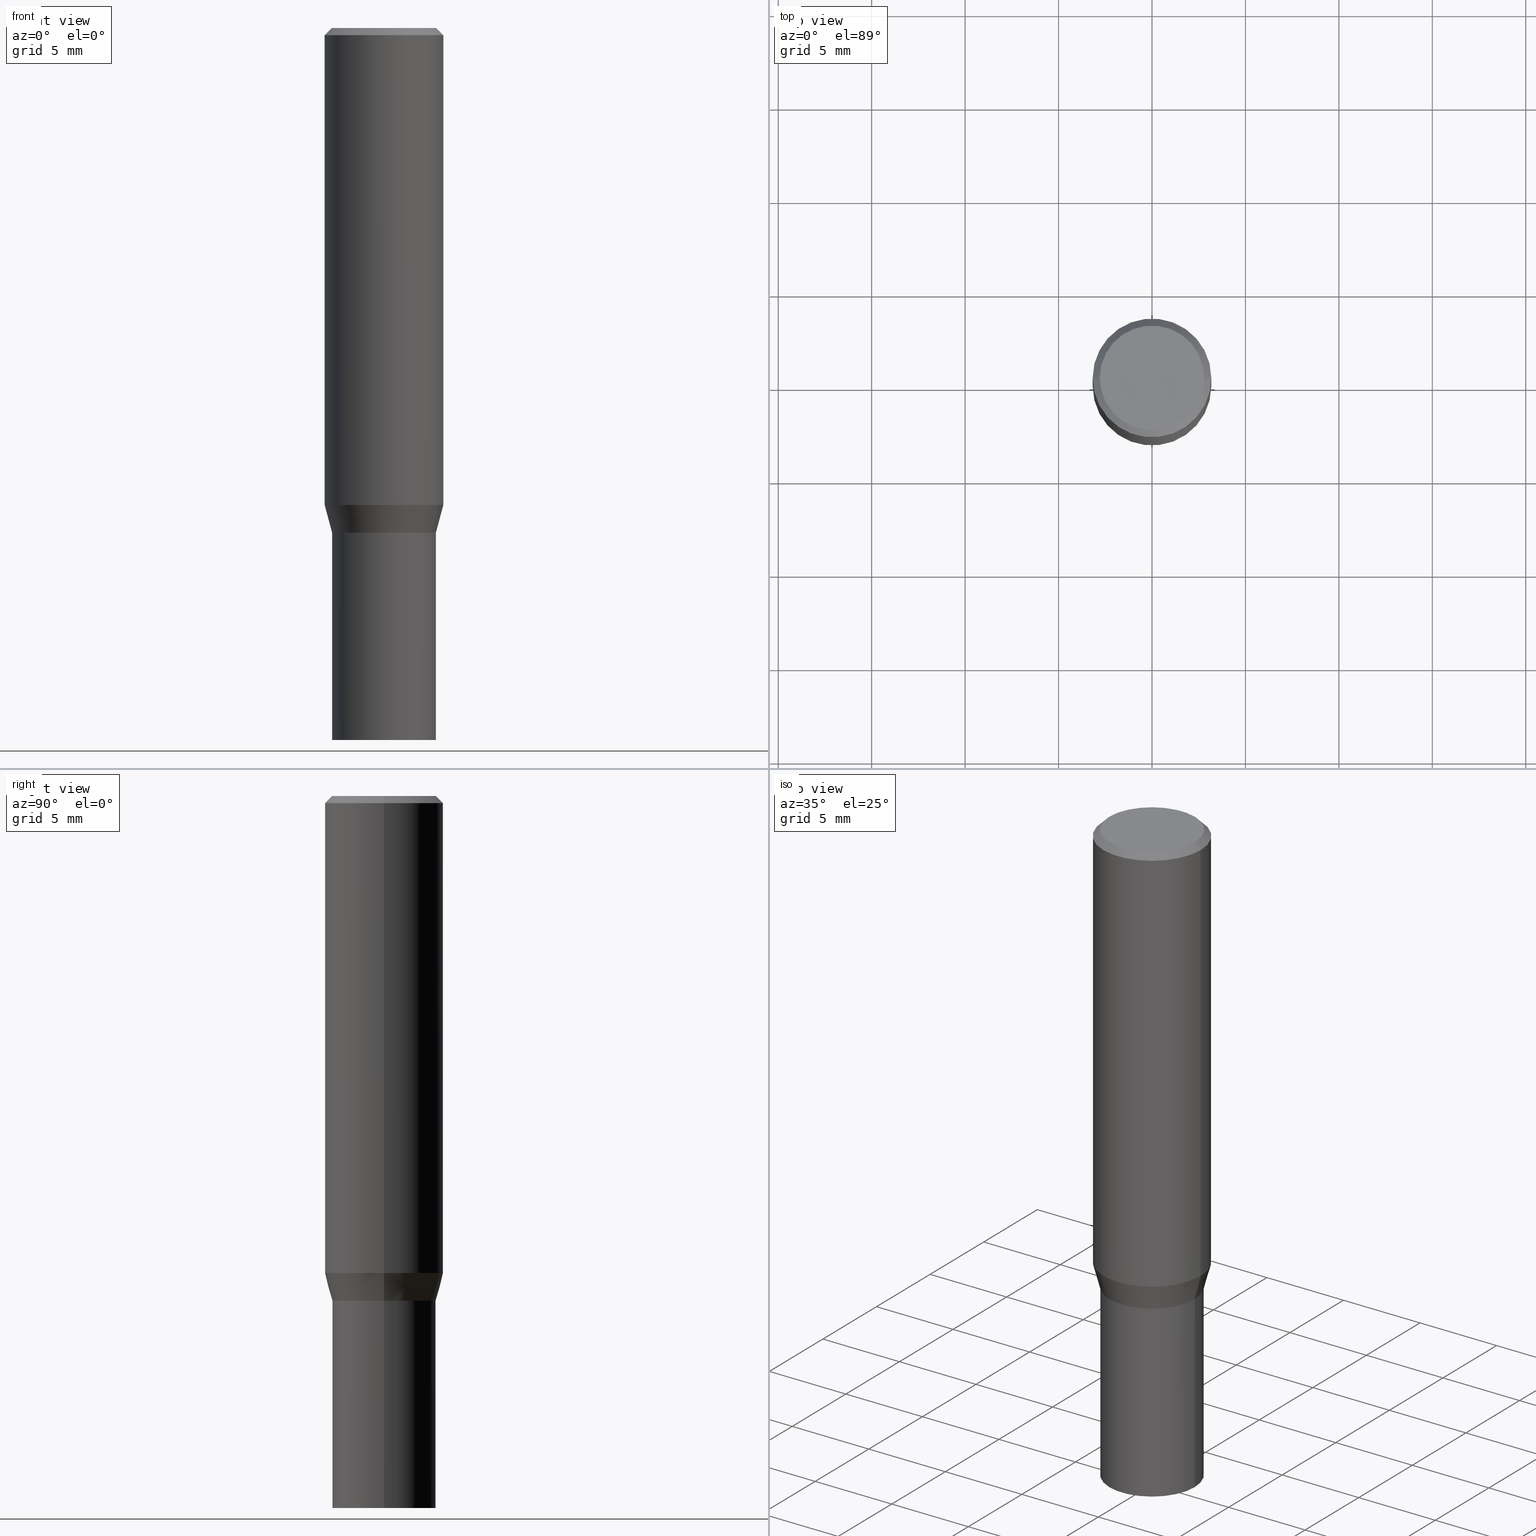
[diagram: canonical four-view strip — front | top / right | iso, engineering-drawing reading convention]
A machine part, canonical four-view strip (front | top / right | iso — engineering-drawing reading convention). The complete STEP part file that produces these views, byte-faithful:
ISO-10303-21;
HEADER;
FILE_DESCRIPTION (( 'STEP AP203' ),
    '1' );
FILE_NAME ('31655.STEP',
    '2024-03-13T16:33:58',
    ( '' ),
    ( '' ),
    'SwSTEP 2.0',
    'SolidWorks 2023',
    '' );
FILE_SCHEMA (( 'CONFIG_CONTROL_DESIGN' ));
ENDSEC;

DATA;
#1 = DIRECTION ( 'NONE',  ( -2.445468806185136597E-29, 3.491481338843145583E-15, 1.000000000000000000 ) ) ;
#2 = AXIS2_PLACEMENT_3D ( 'NONE', #423, #131, #61 ) ;
#3 = DIRECTION ( 'NONE',  ( -2.445468806185136597E-29, 3.491481338843145583E-15, 1.000000000000000000 ) ) ;
#4 = PERSON_AND_ORGANIZATION_ROLE ( 'design_owner' ) ;
#5 = APPROVAL ( #139, 'UNSPECIFIED' ) ;
#6 = ORIENTED_EDGE ( 'NONE', *, *, #158, .F. ) ;
#7 = CIRCLE ( 'NONE', #408, 0.1093999999999999972 ) ;
#8 = CC_DESIGN_APPROVAL ( #5, ( #336 ) ) ;
#9 = EDGE_CURVE ( 'NONE', #289, #229, #49, .T. ) ;
#10 = ORIENTED_EDGE ( 'NONE', *, *, #109, .F. ) ;
#11 = ORIENTED_EDGE ( 'NONE', *, *, #78, .F. ) ;
#12 = DIRECTION ( 'NONE',  ( 0.7071067811865595631, -2.468850131082382884E-15, 0.7071067811865354713 ) ) ;
#13 = EDGE_CURVE ( 'NONE', #138, #315, #53, .T. ) ;
#14 = DIRECTION ( 'NONE',  ( 1.000000000000000000, -6.982962677686265922E-15, 4.876176775795935793E-29 ) ) ;
#15 = AXIS2_PLACEMENT_3D ( 'NONE', #407, #20, #89 ) ;
#16 = AXIS2_PLACEMENT_3D ( 'NONE', #453, #306, #266 ) ;
#17 = CARTESIAN_POINT ( 'NONE',  ( -0.1250000000000000000, -2.619992225786377762E-15, -1.004780007401926190 ) ) ;
#18 = DIRECTION ( 'NONE',  ( -2.445468806185136877E-29, 3.491481338843145188E-15, 1.000000000000000000 ) ) ;
#19 = DIRECTION ( 'NONE',  ( 1.000000000000000000, -6.982962677686266711E-15, 4.876176775795935793E-29 ) ) ;
#20 = DIRECTION ( 'NONE',  ( -2.445468806185136597E-29, 3.491481338843145583E-15, 1.000000000000000000 ) ) ;
#21 = EDGE_CURVE ( 'NONE', #315, #138, #344, .T. ) ;
#22 = EDGE_LOOP ( 'NONE', ( #218, #76, #101, #462 ) ) ;
#23 = FACE_OUTER_BOUND ( 'NONE', #251, .T. ) ;
#24 = ORIENTED_EDGE ( 'NONE', *, *, #37, .T. ) ;
#25 = DIRECTION ( 'NONE',  ( 1.000000000000000000, -6.982962677686266711E-15, 4.876176775795935793E-29 ) ) ;
#26 = ORIENTED_EDGE ( 'NONE', *, *, #228, .T. ) ;
#27 = CC_DESIGN_PERSON_AND_ORGANIZATION_ASSIGNMENT ( #431, #35, ( #336 ) ) ;
#28 = CYLINDRICAL_SURFACE ( 'NONE', #170, 0.1094000000000000528 ) ;
#29 = SHAPE_DEFINITION_REPRESENTATION ( #121, #175 ) ;
#30 = VECTOR ( 'NONE', #127, 39.37007874015748143 ) ;
#31 = CIRCLE ( 'NONE', #182, 0.1088999999999999968 ) ;
#32 = DIRECTION ( 'NONE',  ( -2.445468806185136597E-29, 3.491481338843145583E-15, 1.000000000000000000 ) ) ;
#33 = EDGE_LOOP ( 'NONE', ( #190, #272, #366, #267 ) ) ;
#34 = LINE ( 'NONE', #178, #440 ) ;
#35 = PERSON_AND_ORGANIZATION_ROLE ( 'design_supplier' ) ;
#36 =( NAMED_UNIT ( * ) PLANE_ANGLE_UNIT ( ) SI_UNIT ( $, .RADIAN. ) );
#37 = EDGE_CURVE ( 'NONE', #432, #129, #299, .T. ) ;
#38 = DIRECTION ( 'NONE',  ( -0.7071067811865475727, 2.468850131082257455E-15, -0.7071067811865474617 ) ) ;
#39 = DATE_TIME_ROLE ( 'classification_date' ) ;
#40 = APPLICATION_CONTEXT ( 'configuration controlled 3d designs of mechanical parts and assemblies' ) ;
#41 = CIRCLE ( 'NONE', #150, 0.1094000000000000528 ) ;
#42 = CIRCLE ( 'NONE', #155, 0.1093999999999999972 ) ;
#43 = ORIENTED_EDGE ( 'NONE', *, *, #256, .T. ) ;
#44 = CALENDAR_DATE ( 2024, 13, 3 ) ;
#45 = PERSON ( 'UNSPECIFIED', 'UNSPECIFIED', 'UNSPECIFIED', ('UNSPECIFIED'), ('UNSPECIFIED'), ('UNSPECIFIED') ) ;
#46 = LINE ( 'NONE', #117, #355 ) ;
#47 = CARTESIAN_POINT ( 'NONE',  ( -0.1093999999999999972, 7.773337529215495838E-16, -5.381314988738867416E-30 ) ) ;
#48 = EDGE_CURVE ( 'NONE', #465, #188, #46, .T. ) ;
#49 = LINE ( 'NONE', #253, #260 ) ;
#50 = DIRECTION ( 'NONE',  ( -2.445468806185136877E-29, 3.491481338843145188E-15, 1.000000000000000000 ) ) ;
#51 = APPROVAL ( #111, 'UNSPECIFIED' ) ;
#52 = CARTESIAN_POINT ( 'NONE',  ( 2.599533340974800436E-29, -3.711444663190264104E-15, -1.063000000000000167 ) ) ;
#53 = CIRCLE ( 'NONE', #456, 0.1100000000000000006 ) ;
#54 = SECURITY_CLASSIFICATION ( '', '', #102 ) ;
#55 = CYLINDRICAL_SURFACE ( 'NONE', #247, 0.1250000000000000000 ) ;
#56 = CARTESIAN_POINT ( 'NONE',  ( 2.598310606571707634E-29, -3.709698922520842601E-15, -1.062500000000000000 ) ) ;
#57 = DIRECTION ( 'NONE',  ( 1.000000000000000000, -6.982962677686264344E-15, 0.000000000000000000 ) ) ;
#58 = ADVANCED_FACE ( 'NONE', ( #326 ), #119, .F. ) ;
#59 = DIRECTION ( 'NONE',  ( -2.445468806185136877E-29, 3.491481338843145188E-15, 1.000000000000000000 ) ) ;
#60 = ORIENTED_EDGE ( 'NONE', *, *, #78, .T. ) ;
#61 = DIRECTION ( 'NONE',  ( 1.000000000000000000, -6.982962677686266711E-15, 4.876176775795935793E-29 ) ) ;
#62 = VERTEX_POINT ( 'NONE', #405 ) ;
#63 = CARTESIAN_POINT ( 'NONE',  ( 2.457158165179881134E-29, -3.508170645486503389E-15, -1.004780007401926190 ) ) ;
#64 = EDGE_CURVE ( 'NONE', #289, #62, #81, .T. ) ;
#65 = ORIENTED_EDGE ( 'NONE', *, *, #281, .F. ) ;
#66 = DATE_AND_TIME ( #103, #261 ) ;
#67 = DIRECTION ( 'NONE',  ( -0.7071067811865595631, 7.493145998870398336E-15, 0.7071067811865354713 ) ) ;
#68 = VERTEX_POINT ( 'NONE', #370 ) ;
#69 = FACE_OUTER_BOUND ( 'NONE', #235, .T. ) ;
#70 = CIRCLE ( 'NONE', #356, 0.1088999999999999968 ) ;
#71 = DIRECTION ( 'NONE',  ( -2.438088387897960049E-29, 3.491481338843145188E-15, 1.000000000000000000 ) ) ;
#72 = CALENDAR_DATE ( 2024, 13, 3 ) ;
#73 = CARTESIAN_POINT ( 'NONE',  ( 0.1100000000000000006, -8.322946247794786836E-16, -7.674416657715788472E-18 ) ) ;
#74 = PERSON_AND_ORGANIZATION_ROLE ( 'classification_officer' ) ;
#75 = CALENDAR_DATE ( 2024, 13, 3 ) ;
#76 = ORIENTED_EDGE ( 'NONE', *, *, #436, .T. ) ;
#77 = AXIS2_PLACEMENT_3D ( 'NONE', #278, #282, #313 ) ;
#78 = EDGE_CURVE ( 'NONE', #229, #114, #402, .T. ) ;
#79 = CONICAL_SURFACE ( 'NONE', #335, 0.1250000000000000000, 0.7853981633974483900 ) ;
#80 = AXIS2_PLACEMENT_3D ( 'NONE', #309, #100, #134 ) ;
#81 = LINE ( 'NONE', #162, #248 ) ;
#82 = EDGE_LOOP ( 'NONE', ( #246, #93 ) ) ;
#83 = CARTESIAN_POINT ( 'NONE',  ( -0.1094000000000000528, -2.932365169599292228E-15, -1.062500000000000000 ) ) ;
#84 = DIRECTION ( 'NONE',  ( 1.000000000000000000, -6.982962677686266711E-15, 4.876001053725558154E-29 ) ) ;
#85 = DIRECTION ( 'NONE',  ( 1.000000000000000000, -6.982962677686265922E-15, 0.000000000000000000 ) ) ;
#86 = AXIS2_PLACEMENT_3D ( 'NONE', #381, #3, #141 ) ;
#87 = CARTESIAN_POINT ( 'NONE',  ( 2.599533340974800436E-29, -3.711444663190264104E-15, -1.063000000000000167 ) ) ;
#88 = EDGE_CURVE ( 'NONE', #200, #62, #264, .T. ) ;
#89 = DIRECTION ( 'NONE',  ( 1.000000000000000000, -6.982962677686262766E-15, 0.000000000000000000 ) ) ;
#90 = EDGE_LOOP ( 'NONE', ( #149, #301, #165, #276 ) ) ;
#91 = DIRECTION ( 'NONE',  ( 2.438088387897960049E-29, -3.491481338843145188E-15, -1.000000000000000000 ) ) ;
#92 = CARTESIAN_POINT ( 'NONE',  ( 2.598310606571707634E-29, -3.709698922520842601E-15, -1.062500000000000000 ) ) ;
#93 = ORIENTED_EDGE ( 'NONE', *, *, #177, .F. ) ;
#94 = CONICAL_SURFACE ( 'NONE', #16, 0.1094000000000000528, 0.2617993877991510732 ) ;
#95 = VERTEX_POINT ( 'NONE', #220 ) ;
#96 = DIRECTION ( 'NONE',  ( -2.445468806185136597E-29, 3.491481338843145583E-15, 1.000000000000000000 ) ) ;
#97 = LINE ( 'NONE', #237, #312 ) ;
#98 = EDGE_LOOP ( 'NONE', ( #265, #449, #285, #290 ) ) ;
#99 = CARTESIAN_POINT ( 'NONE',  ( 2.599533340974800436E-29, -3.711444663190264104E-15, -1.063000000000000167 ) ) ;
#100 = DIRECTION ( 'NONE',  ( -2.445468806185136597E-29, 3.491481338843145583E-15, 1.000000000000000000 ) ) ;
#101 = ORIENTED_EDGE ( 'NONE', *, *, #362, .T. ) ;
#102 = SECURITY_CLASSIFICATION_LEVEL ( 'unclassified' ) ;
#103 = CALENDAR_DATE ( 2024, 13, 3 ) ;
#104 = CLOSED_SHELL ( 'NONE', ( #250, #369, #236, #115, #148, #286, #287, #245, #173, #58, #399, #198 ) ) ;
#105 = LENGTH_MEASURE_WITH_UNIT ( LENGTH_MEASURE( 0.02539999999999999897 ), #204 );
#106 = CIRCLE ( 'NONE', #113, 0.1250000000000000000 ) ;
#107 = CARTESIAN_POINT ( 'NONE',  ( 3.668203209277704895E-29, -5.237222008264718177E-15, -1.500000000000000222 ) ) ;
#108 = DATE_AND_TIME ( #72, #372 ) ;
#109 = EDGE_CURVE ( 'NONE', #232, #129, #226, .T. ) ;
#110 = CARTESIAN_POINT ( 'NONE',  ( 3.668203209277705088E-31, -5.237222008264718399E-17, -0.01499999999999999944 ) ) ;
#111 = APPROVAL_STATUS ( 'not_yet_approved' ) ;
#112 = AXIS2_PLACEMENT_3D ( 'NONE', #302, #410, #258 ) ;
#113 = AXIS2_PLACEMENT_3D ( 'NONE', #110, #168, #212 ) ;
#114 = VERTEX_POINT ( 'NONE', #157 ) ;
#115 = ADVANCED_FACE ( 'NONE', ( #443 ), #55, .T. ) ;
#116 = AXIS2_PLACEMENT_3D ( 'NONE', #202, #338, #348 ) ;
#117 = CARTESIAN_POINT ( 'NONE',  ( -0.1094000000000000528, -2.934110910268714126E-15, -1.063000000000000167 ) ) ;
#118 = DIRECTION ( 'NONE',  ( 1.000000000000000000, -6.982962677686266711E-15, 0.000000000000000000 ) ) ;
#119 = PLANE ( 'NONE',  #163 ) ;
#120 = DIRECTION ( 'NONE',  ( -2.445468806185136597E-29, 3.491481338843145583E-15, 1.000000000000000000 ) ) ;
#121 = PRODUCT_DEFINITION_SHAPE ( 'NONE', 'NONE',  #460 ) ;
#122 = DIRECTION ( 'NONE',  ( 1.000000000000000000, -6.982962677686269866E-15, 0.000000000000000000 ) ) ;
#123 = DIRECTION ( 'NONE',  ( 0.000000000000000000, 0.000000000000000000, 1.000000000000000000 ) ) ;
#124 = CC_DESIGN_SECURITY_CLASSIFICATION ( #54, ( #336 ) ) ;
#125 = DIRECTION ( 'NONE',  ( 1.000000000000000000, -6.982962677686269866E-15, 0.000000000000000000 ) ) ;
#126 = VERTEX_POINT ( 'NONE', #83 ) ;
#127 = DIRECTION ( 'NONE',  ( -2.445468806185136877E-29, 3.491481338843145188E-15, 1.000000000000000000 ) ) ;
#128 = DESIGN_CONTEXT ( 'detailed design', #40, 'design' ) ;
#129 = VERTEX_POINT ( 'NONE', #153 ) ;
#130 = EDGE_CURVE ( 'NONE', #289, #465, #310, .T. ) ;
#131 = DIRECTION ( 'NONE',  ( -2.445468806185136597E-29, 3.491481338843145583E-15, 1.000000000000000000 ) ) ;
#132 = ORIENTED_EDGE ( 'NONE', *, *, #455, .F. ) ;
#133 = APPROVAL_PERSON_ORGANIZATION ( #187, #51, #394 ) ;
#134 = DIRECTION ( 'NONE',  ( 1.000000000000000000, -6.982962677686264344E-15, 0.000000000000000000 ) ) ;
#135 = ORIENTED_EDGE ( 'NONE', *, *, #48, .F. ) ;
#136 = FACE_OUTER_BOUND ( 'NONE', #454, .T. ) ;
#137 = PLANE ( 'NONE',  #288 ) ;
#138 = VERTEX_POINT ( 'NONE', #373 ) ;
#139 = APPROVAL_STATUS ( 'not_yet_approved' ) ;
#140 = FACE_OUTER_BOUND ( 'NONE', #22, .T. ) ;
#141 = DIRECTION ( 'NONE',  ( 1.000000000000000000, -6.982962677686266711E-15, 4.876176775795935793E-29 ) ) ;
#142 = DIRECTION ( 'NONE',  ( -2.445468806185136597E-29, 3.491481338843145583E-15, 1.000000000000000000 ) ) ;
#143 =( NAMED_UNIT ( * ) SI_UNIT ( $, .STERADIAN. ) SOLID_ANGLE_UNIT ( ) );
#144 = COORDINATED_UNIVERSAL_TIME_OFFSET ( 5, 0, .BEHIND. ) ;
#145 = FACE_OUTER_BOUND ( 'NONE', #33, .T. ) ;
#146 = COORDINATED_UNIVERSAL_TIME_OFFSET ( 5, 0, .BEHIND. ) ;
#147 = EDGE_CURVE ( 'NONE', #62, #126, #41, .T. ) ;
#148 = ADVANCED_FACE ( 'NONE', ( #374 ), #180, .T. ) ;
#149 = ORIENTED_EDGE ( 'NONE', *, *, #256, .F. ) ;
#150 = AXIS2_PLACEMENT_3D ( 'NONE', #56, #196, #441 ) ;
#151 = ORIENTED_EDGE ( 'NONE', *, *, #9, .F. ) ;
#152 = ORIENTED_EDGE ( 'NONE', *, *, #199, .T. ) ;
#153 = CARTESIAN_POINT ( 'NONE',  ( 0.1093999999999999972, -4.475380780129141676E-15, -1.063000000000000167 ) ) ;
#154 = AXIS2_PLACEMENT_3D ( 'NONE', #195, #120, #446 ) ;
#155 = AXIS2_PLACEMENT_3D ( 'NONE', #107, #393, #430 ) ;
#156 = ORIENTED_EDGE ( 'NONE', *, *, #160, .F. ) ;
#157 = CARTESIAN_POINT ( 'NONE',  ( 0.1250000000000000000, -9.252425547934304180E-16, -0.01499999999999999944 ) ) ;
#158 = EDGE_CURVE ( 'NONE', #129, #432, #7, .T. ) ;
#159 = DIRECTION ( 'NONE',  ( -2.445468806185136597E-29, 3.491481338843145583E-15, 1.000000000000000000 ) ) ;
#160 = EDGE_CURVE ( 'NONE', #305, #114, #417, .T. ) ;
#161 = FACE_OUTER_BOUND ( 'NONE', #337, .T. ) ;
#162 = CARTESIAN_POINT ( 'NONE',  ( 0.1094000000000000528, -7.639361169388779663E-16, 5.334537392720756711E-30 ) ) ;
#163 = AXIS2_PLACEMENT_3D ( 'NONE', #52, #437, #14 ) ;
#164 = CARTESIAN_POINT ( 'NONE',  ( 0.1250000000000000000, -4.381040980197285939E-15, -1.004780007401926190 ) ) ;
#165 = ORIENTED_EDGE ( 'NONE', *, *, #64, .T. ) ;
#166 = ORIENTED_EDGE ( 'NONE', *, *, #160, .T. ) ;
#167 = CYLINDRICAL_SURFACE ( 'NONE', #346, 0.1250000000000000000 ) ;
#168 = DIRECTION ( 'NONE',  ( -2.445468806185136597E-29, 3.491481338843145583E-15, 1.000000000000000000 ) ) ;
#169 = EDGE_LOOP ( 'NONE', ( #255, #152, #396, #11 ) ) ;
#170 = AXIS2_PLACEMENT_3D ( 'NONE', #171, #142, #427 ) ;
#171 = CARTESIAN_POINT ( 'NONE',  ( 0.000000000000000000, 0.000000000000000000, 0.000000000000000000 ) ) ;
#172 = AXIS2_PLACEMENT_3D ( 'NONE', #343, #32, #461 ) ;
#173 = ADVANCED_FACE ( 'NONE', ( #161 ), #257, .F. ) ;
#174 = ORIENTED_EDGE ( 'NONE', *, *, #9, .T. ) ;
#175 = ADVANCED_BREP_SHAPE_REPRESENTATION ( '31655', ( #184, #328, #398 ), #331 ) ;
#176 = DIRECTION ( 'NONE',  ( 1.000000000000000000, 0.000000000000000000, 0.000000000000000000 ) ) ;
#177 = EDGE_CURVE ( 'NONE', #68, #232, #214, .T. ) ;
#178 = CARTESIAN_POINT ( 'NONE',  ( -0.1250000000000000000, 8.204981146281362596E-16, -0.01499999999999999944 ) ) ;
#179 = PERSON_AND_ORGANIZATION ( #45, #409 ) ;
#180 = CONICAL_SURFACE ( 'NONE', #154, 0.1094000000000000528, 0.2617993877991510732 ) ;
#181 = APPLICATION_PROTOCOL_DEFINITION ( 'international standard', 'config_control_design', 1994, #360 ) ;
#182 = AXIS2_PLACEMENT_3D ( 'NONE', #352, #304, #57 ) ;
#183 = CYLINDRICAL_SURFACE ( 'NONE', #86, 0.1093999999999999972 ) ;
#184 = MANIFOLD_SOLID_BREP ( 'Body-Move/Copy2[1]', #298 ) ;
#185 = ORIENTED_EDGE ( 'NONE', *, *, #199, .F. ) ;
#186 = DATE_AND_TIME ( #75, #193 ) ;
#187 = PERSON_AND_ORGANIZATION ( #45, #409 ) ;
#188 = VERTEX_POINT ( 'NONE', #17 ) ;
#189 = CARTESIAN_POINT ( 'NONE',  ( 0.1093999999999999972, -6.001158125203596537E-15, -1.500000000000000222 ) ) ;
#190 = ORIENTED_EDGE ( 'NONE', *, *, #228, .F. ) ;
#191 = DIRECTION ( 'NONE',  ( -2.445468806185136597E-29, 3.491481338843145583E-15, 1.000000000000000000 ) ) ;
#192 = CIRCLE ( 'NONE', #252, 0.1094000000000000528 ) ;
#193 = LOCAL_TIME ( 12, 33, 58.00000000000000000, #146 ) ;
#194 = CARTESIAN_POINT ( 'NONE',  ( 0.000000000000000000, 0.000000000000000000, 0.000000000000000000 ) ) ;
#195 = CARTESIAN_POINT ( 'NONE',  ( 2.599533340974800436E-29, -3.711444663190264104E-15, -1.063000000000000167 ) ) ;
#196 = DIRECTION ( 'NONE',  ( -2.445468806185136597E-29, 3.491481338843145583E-15, 1.000000000000000000 ) ) ;
#197 = DIRECTION ( 'NONE',  ( -2.445468806185136597E-29, 3.491481338843145583E-15, 1.000000000000000000 ) ) ;
#198 = ADVANCED_FACE ( 'NONE', ( #295 ), #332, .F. ) ;
#199 = EDGE_CURVE ( 'NONE', #188, #305, #293, .T. ) ;
#200 = VERTEX_POINT ( 'NONE', #365 ) ;
#201 = CIRCLE ( 'NONE', #318, 0.1250000000000000000 ) ;
#202 = CARTESIAN_POINT ( 'NONE',  ( 7.639361169389034070E-16, 0.1093999999999962919, -1.063000000000000611 ) ) ;
#203 = ORIENTED_EDGE ( 'NONE', *, *, #347, .T. ) ;
#204 =( LENGTH_UNIT ( ) NAMED_UNIT ( * ) SI_UNIT ( $, .METRE. ) );
#205 = ORIENTED_EDGE ( 'NONE', *, *, #395, .F. ) ;
#206 = EDGE_CURVE ( 'NONE', #188, #229, #425, .T. ) ;
#207 = FACE_OUTER_BOUND ( 'NONE', #377, .T. ) ;
#208 = ORIENTED_EDGE ( 'NONE', *, *, #206, .F. ) ;
#209 = AXIS2_PLACEMENT_3D ( 'NONE', #262, #91, #450 ) ;
#210 = PLANE ( 'NONE',  #116 ) ;
#211 = DIRECTION ( 'NONE',  ( 1.000000000000000000, -6.982962677686265922E-15, 4.876176775795935793E-29 ) ) ;
#212 = DIRECTION ( 'NONE',  ( 1.000000000000000000, -6.982962677686266711E-15, 0.000000000000000000 ) ) ;
#213 = PERSON_AND_ORGANIZATION ( #45, #409 ) ;
#214 = CIRCLE ( 'NONE', #233, 0.1093999999999999972 ) ;
#215 = ORIENTED_EDGE ( 'NONE', *, *, #436, .F. ) ;
#216 = DIRECTION ( 'NONE',  ( 1.000000000000000000, -6.982962677686264344E-15, 0.000000000000000000 ) ) ;
#217 = AXIS2_PLACEMENT_3D ( 'NONE', #291, #327, #85 ) ;
#218 = ORIENTED_EDGE ( 'NONE', *, *, #21, .F. ) ;
#219 = DIRECTION ( 'NONE',  ( -2.445468806185136597E-29, 3.491481338843145583E-15, 1.000000000000000000 ) ) ;
#220 = CARTESIAN_POINT ( 'NONE',  ( -0.1088999999999999968, -2.935014396773403823E-15, -1.063000000000000167 ) ) ;
#221 = CC_DESIGN_DATE_AND_TIME_ASSIGNMENT ( #359, #244, ( #460 ) ) ;
#222 = COORDINATED_UNIVERSAL_TIME_OFFSET ( 5, 0, .BEHIND. ) ;
#223 = CARTESIAN_POINT ( 'NONE',  ( 1.876754654212523840E-46, -2.679508254694119990E-32, -7.674416657721384454E-18 ) ) ;
#224 = DIRECTION ( 'NONE',  ( -2.445468806185136597E-29, 3.491481338843145583E-15, 1.000000000000000000 ) ) ;
#225 = VECTOR ( 'NONE', #279, 39.37007874015748143 ) ;
#226 = LINE ( 'NONE', #254, #371 ) ;
#227 = LINE ( 'NONE', #47, #30 ) ;
#228 = EDGE_CURVE ( 'NONE', #68, #432, #227, .T. ) ;
#229 = VERTEX_POINT ( 'NONE', #164 ) ;
#230 = PRODUCT_RELATED_PRODUCT_CATEGORY ( 'detail', '', ( #428 ) ) ;
#231 = FACE_OUTER_BOUND ( 'NONE', #419, .T. ) ;
#232 = VERTEX_POINT ( 'NONE', #189 ) ;
#233 = AXIS2_PLACEMENT_3D ( 'NONE', #330, #334, #122 ) ;
#234 = CIRCLE ( 'NONE', #319, 0.1094000000000000528 ) ;
#235 = EDGE_LOOP ( 'NONE', ( #413, #24 ) ) ;
#236 = ADVANCED_FACE ( 'NONE', ( #140 ), #268, .T. ) ;
#237 = CARTESIAN_POINT ( 'NONE',  ( -0.1088999999999999968, -2.937663623947514630E-15, -1.063000000000000167 ) ) ;
#238 = ORIENTED_EDGE ( 'NONE', *, *, #21, .T. ) ;
#239 = DIRECTION ( 'NONE',  ( -2.445468806185136597E-29, 3.491481338843145583E-15, 1.000000000000000000 ) ) ;
#240 = FACE_OUTER_BOUND ( 'NONE', #82, .T. ) ;
#241 = COORDINATED_UNIVERSAL_TIME_OFFSET ( 5, 0, .BEHIND. ) ;
#242 = VECTOR ( 'NONE', #50, 39.37007874015748143 ) ;
#243 = DIRECTION ( 'NONE',  ( 2.445468806185136597E-29, -3.491481338843145583E-15, -1.000000000000000000 ) ) ;
#244 = DATE_TIME_ROLE ( 'creation_date' ) ;
#245 = ADVANCED_FACE ( 'NONE', ( #342 ), #79, .T. ) ;
#246 = ORIENTED_EDGE ( 'NONE', *, *, #347, .F. ) ;
#247 = AXIS2_PLACEMENT_3D ( 'NONE', #412, #224, #19 ) ;
#248 = VECTOR ( 'NONE', #59, 39.37007874015748143 ) ;
#249 = LOCAL_TIME ( 12, 33, 58.00000000000000000, #386 ) ;
#250 = ADVANCED_FACE ( 'NONE', ( #136 ), #28, .F. ) ;
#251 = EDGE_LOOP ( 'NONE', ( #135, #375, #174, #208 ) ) ;
#252 = AXIS2_PLACEMENT_3D ( 'NONE', #99, #96, #379 ) ;
#253 = CARTESIAN_POINT ( 'NONE',  ( 0.1094000000000000528, -4.475380780129141676E-15, -1.063000000000000167 ) ) ;
#254 = CARTESIAN_POINT ( 'NONE',  ( 0.1093999999999999972, -7.639361169388775718E-16, 5.334537392720753909E-30 ) ) ;
#255 = ORIENTED_EDGE ( 'NONE', *, *, #281, .T. ) ;
#256 = EDGE_CURVE ( 'NONE', #465, #126, #340, .T. ) ;
#257 = PLANE ( 'NONE',  #209 ) ;
#258 = DIRECTION ( 'NONE',  ( 1.000000000000000000, -6.982962677686266711E-15, 4.876176775795936353E-29 ) ) ;
#259 = DIRECTION ( 'NONE',  ( 1.000000000000000000, -6.982962677686269866E-15, 0.000000000000000000 ) ) ;
#260 = VECTOR ( 'NONE', #363, 39.37007874015748143 ) ;
#261 = LOCAL_TIME ( 12, 33, 58.00000000000000000, #222 ) ;
#262 = CARTESIAN_POINT ( 'NONE',  ( 7.681258945454893776E-16, 0.1100000000000000006, -3.879001556016067477E-16 ) ) ;
#263 = EDGE_LOOP ( 'NONE', ( #185, #382, #60, #156 ) ) ;
#264 = LINE ( 'NONE', #406, #397 ) ;
#265 = ORIENTED_EDGE ( 'NONE', *, *, #321, .T. ) ;
#266 = DIRECTION ( 'NONE',  ( 1.000000000000000000, -6.982962677686265922E-15, 0.000000000000000000 ) ) ;
#267 = ORIENTED_EDGE ( 'NONE', *, *, #37, .F. ) ;
#268 = CONICAL_SURFACE ( 'NONE', #77, 0.1250000000000000000, 0.7853981633974483900 ) ;
#269 = CARTESIAN_POINT ( 'NONE',  ( 3.668203209277705088E-31, -5.237222008264718399E-17, -0.01499999999999999944 ) ) ;
#270 = EDGE_CURVE ( 'NONE', #465, #289, #192, .T. ) ;
#271 = FACE_OUTER_BOUND ( 'NONE', #98, .T. ) ;
#272 = ORIENTED_EDGE ( 'NONE', *, *, #177, .T. ) ;
#273 = DIRECTION ( 'NONE',  ( -2.445468806185136877E-29, 3.491481338843145188E-15, 1.000000000000000000 ) ) ;
#274 = ADVANCED_FACE ( 'NONE', ( #231 ), #389, .T. ) ;
#275 = DIRECTION ( 'NONE',  ( -2.445468806185136597E-29, 3.491481338843145583E-15, 1.000000000000000000 ) ) ;
#276 = ORIENTED_EDGE ( 'NONE', *, *, #147, .T. ) ;
#277 = APPROVAL_ROLE ( '' ) ;
#278 = CARTESIAN_POINT ( 'NONE',  ( 3.668203209277705088E-31, -5.237222008264718399E-17, -0.01499999999999999944 ) ) ;
#279 = DIRECTION ( 'NONE',  ( 0.7071067811865475727, -7.319954787623256045E-15, -0.7071067811865474617 ) ) ;
#280 = APPLICATION_PROTOCOL_DEFINITION ( 'international standard', 'config_control_design', 1994, #40 ) ;
#281 = EDGE_CURVE ( 'NONE', #229, #188, #201, .T. ) ;
#282 = DIRECTION ( 'NONE',  ( 2.445468806185136597E-29, -3.491481338843145583E-15, -1.000000000000000000 ) ) ;
#283 = LOCAL_TIME ( 12, 33, 58.00000000000000000, #144 ) ;
#284 = ADVANCED_FACE ( 'NONE', ( #69 ), #210, .F. ) ;
#285 = ORIENTED_EDGE ( 'NONE', *, *, #147, .F. ) ;
#286 = ADVANCED_FACE ( 'NONE', ( #23 ), #94, .T. ) ;
#287 = ADVANCED_FACE ( 'NONE', ( #415 ), #167, .T. ) ;
#288 = AXIS2_PLACEMENT_3D ( 'NONE', #384, #71, #211 ) ;
#289 = VERTEX_POINT ( 'NONE', #354 ) ;
#290 = ORIENTED_EDGE ( 'NONE', *, *, #88, .F. ) ;
#291 = CARTESIAN_POINT ( 'NONE',  ( 2.599533340974800436E-29, -3.711444663190264104E-15, -1.063000000000000167 ) ) ;
#292 = DIRECTION ( 'NONE',  ( 1.000000000000000000, -6.982962677686266711E-15, 4.876001053725558154E-29 ) ) ;
#293 = LINE ( 'NONE', #294, #447 ) ;
#294 = CARTESIAN_POINT ( 'NONE',  ( -0.1250000000000000000, 8.881784197001252323E-16, -6.148668862818632227E-30 ) ) ;
#295 = FACE_OUTER_BOUND ( 'NONE', #90, .T. ) ;
#296 = CC_DESIGN_PERSON_AND_ORGANIZATION_ASSIGNMENT ( #429, #392, ( #336 ) ) ;
#297 = APPROVAL_STATUS ( 'not_yet_approved' ) ;
#298 = CLOSED_SHELL ( 'NONE', ( #274, #404, #308, #284 ) ) ;
#299 = CIRCLE ( 'NONE', #361, 0.1093999999999999972 ) ;
#300 = APPROVAL_PERSON_ORGANIZATION ( #179, #351, #403 ) ;
#301 = ORIENTED_EDGE ( 'NONE', *, *, #130, .F. ) ;
#302 = CARTESIAN_POINT ( 'NONE',  ( 0.000000000000000000, 0.000000000000000000, 0.000000000000000000 ) ) ;
#303 = UNCERTAINTY_MEASURE_WITH_UNIT (LENGTH_MEASURE( 1.000000000000000082E-05 ), #390, 'distance_accuracy_value', 'NONE');
#304 = DIRECTION ( 'NONE',  ( -2.445468806185136597E-29, 3.491481338843145583E-15, 1.000000000000000000 ) ) ;
#305 = VERTEX_POINT ( 'NONE', #391 ) ;
#306 = DIRECTION ( 'NONE',  ( -2.445468806185136597E-29, 3.491481338843145583E-15, 1.000000000000000000 ) ) ;
#307 = ORIENTED_EDGE ( 'NONE', *, *, #48, .T. ) ;
#308 = ADVANCED_FACE ( 'NONE', ( #145 ), #183, .T. ) ;
#309 = CARTESIAN_POINT ( 'NONE',  ( 2.599533340974800436E-29, -3.711444663190264104E-15, -1.063000000000000167 ) ) ;
#310 = CIRCLE ( 'NONE', #217, 0.1094000000000000528 ) ;
#311 = ORIENTED_EDGE ( 'NONE', *, *, #451, .F. ) ;
#312 = VECTOR ( 'NONE', #67, 39.37007874015748143 ) ;
#313 = DIRECTION ( 'NONE',  ( -1.000000000000000000, 6.982962677686266711E-15, 0.000000000000000000 ) ) ;
#314 = CARTESIAN_POINT ( 'NONE',  ( 0.000000000000000000, 0.000000000000000000, 0.000000000000000000 ) ) ;
#315 = VERTEX_POINT ( 'NONE', #73 ) ;
#316 = LINE ( 'NONE', #463, #225 ) ;
#317 = CC_DESIGN_PERSON_AND_ORGANIZATION_ASSIGNMENT ( #350, #74, ( #54 ) ) ;
#318 = AXIS2_PLACEMENT_3D ( 'NONE', #63, #239, #383 ) ;
#319 = AXIS2_PLACEMENT_3D ( 'NONE', #92, #159, #259 ) ;
#320 = DATE_AND_TIME ( #353, #249 ) ;
#321 = EDGE_CURVE ( 'NONE', #200, #95, #70, .T. ) ;
#322 = EDGE_LOOP ( 'NONE', ( #215, #452, #438, #166 ) ) ;
#323 = APPROVAL_DATE_TIME ( #320, #5 ) ;
#324 = PERSON_AND_ORGANIZATION ( #45, #409 ) ;
#325 = CC_DESIGN_APPROVAL ( #351, ( #54 ) ) ;
#326 = FACE_OUTER_BOUND ( 'NONE', #459, .T. ) ;
#327 = DIRECTION ( 'NONE',  ( -2.445468806185136597E-29, 3.491481338843145583E-15, 1.000000000000000000 ) ) ;
#328 = MANIFOLD_SOLID_BREP ( 'Body-Move/Copy2[2]', #104 ) ;
#329 = DIRECTION ( 'NONE',  ( -0.2588190451025223493, 5.211531920934556564E-15, 0.9659258262890678681 ) ) ;
#330 = CARTESIAN_POINT ( 'NONE',  ( 3.668203209277704895E-29, -5.237222008264718177E-15, -1.500000000000000222 ) ) ;
#331 =( GEOMETRIC_REPRESENTATION_CONTEXT ( 3 ) GLOBAL_UNCERTAINTY_ASSIGNED_CONTEXT ( ( #303 ) ) GLOBAL_UNIT_ASSIGNED_CONTEXT ( ( #390, #36, #143 ) ) REPRESENTATION_CONTEXT ( 'NONE', 'WORKASPACE' ) );
#332 = CYLINDRICAL_SURFACE ( 'NONE', #112, 0.1094000000000000528 ) ;
#333 = CARTESIAN_POINT ( 'NONE',  ( 3.668203209277705088E-31, -5.237222008264718399E-17, -0.01499999999999999944 ) ) ;
#334 = DIRECTION ( 'NONE',  ( -2.445468806185136597E-29, 3.491481338843145583E-15, 1.000000000000000000 ) ) ;
#335 = AXIS2_PLACEMENT_3D ( 'NONE', #269, #243, #466 ) ;
#336 = PRODUCT_DEFINITION_FORMATION_WITH_SPECIFIED_SOURCE ( 'ANY', '', #428, .NOT_KNOWN. ) ;
#337 = EDGE_LOOP ( 'NONE', ( #424, #238 ) ) ;
#338 = DIRECTION ( 'NONE',  ( 2.438088387897960049E-29, -3.491481338843145188E-15, -1.000000000000000000 ) ) ;
#339 = ORIENTED_EDGE ( 'NONE', *, *, #270, .F. ) ;
#340 = LINE ( 'NONE', #420, #433 ) ;
#341 = ORIENTED_EDGE ( 'NONE', *, *, #321, .F. ) ;
#342 = FACE_OUTER_BOUND ( 'NONE', #322, .T. ) ;
#343 = CARTESIAN_POINT ( 'NONE',  ( 2.599533340974800436E-29, -3.711444663190264104E-15, -1.063000000000000167 ) ) ;
#344 = CIRCLE ( 'NONE', #385, 0.1100000000000000006 ) ;
#345 = ORIENTED_EDGE ( 'NONE', *, *, #64, .F. ) ;
#346 = AXIS2_PLACEMENT_3D ( 'NONE', #314, #1, #25 ) ;
#347 = EDGE_CURVE ( 'NONE', #232, #68, #42, .T. ) ;
#348 = DIRECTION ( 'NONE',  ( -1.000000000000000000, 6.982962677686265922E-15, -4.876176775795935793E-29 ) ) ;
#349 = CARTESIAN_POINT ( 'NONE',  ( -0.1093999999999999972, -3.696999582805941951E-15, -1.063000000000000167 ) ) ;
#350 = PERSON_AND_ORGANIZATION ( #45, #409 ) ;
#351 = APPROVAL ( #297, 'UNSPECIFIED' ) ;
#352 = CARTESIAN_POINT ( 'NONE',  ( 2.599533340974800436E-29, -3.711444663190264104E-15, -1.063000000000000167 ) ) ;
#353 = CALENDAR_DATE ( 2024, 13, 3 ) ;
#354 = CARTESIAN_POINT ( 'NONE',  ( 0.1094000000000000528, -4.475380780129141676E-15, -1.063000000000000167 ) ) ;
#355 = VECTOR ( 'NONE', #329, 39.37007874015748143 ) ;
#356 = AXIS2_PLACEMENT_3D ( 'NONE', #458, #275, #216 ) ;
#357 = ORIENTED_EDGE ( 'NONE', *, *, #451, .T. ) ;
#358 = PERSON_AND_ORGANIZATION_ROLE ( 'creator' ) ;
#359 = DATE_AND_TIME ( #44, #283 ) ;
#360 = APPLICATION_CONTEXT ( 'configuration controlled 3d designs of mechanical parts and assemblies' ) ;
#361 = AXIS2_PLACEMENT_3D ( 'NONE', #442, #219, #400 ) ;
#362 = EDGE_CURVE ( 'NONE', #114, #305, #106, .T. ) ;
#363 = DIRECTION ( 'NONE',  ( 0.2588190451025223493, 1.565188264969614276E-15, 0.9659258262890678681 ) ) ;
#364 = CC_DESIGN_DATE_AND_TIME_ASSIGNMENT ( #108, #39, ( #54 ) ) ;
#365 = CARTESIAN_POINT ( 'NONE',  ( 0.1088999999999999968, -4.471889298790297880E-15, -1.063000000000000167 ) ) ;
#366 = ORIENTED_EDGE ( 'NONE', *, *, #109, .T. ) ;
#367 = DIRECTION ( 'NONE',  ( -2.445468806185136877E-29, 3.491481338843145188E-15, 1.000000000000000000 ) ) ;
#368 = CARTESIAN_POINT ( 'NONE',  ( 1.876754654212523840E-46, -2.679508254694119990E-32, -7.674416657721384454E-18 ) ) ;
#369 = ADVANCED_FACE ( 'NONE', ( #271 ), #434, .T. ) ;
#370 = CARTESIAN_POINT ( 'NONE',  ( -0.1093999999999999972, -3.696999582805941951E-15, -1.500000000000000222 ) ) ;
#371 = VECTOR ( 'NONE', #367, 39.37007874015748143 ) ;
#372 = LOCAL_TIME ( 12, 33, 58.00000000000000000, #241 ) ;
#373 = CARTESIAN_POINT ( 'NONE',  ( -0.1100000000000000006, 7.943120045868128186E-16, -7.674416657726847932E-18 ) ) ;
#374 = FACE_OUTER_BOUND ( 'NONE', #411, .T. ) ;
#375 = ORIENTED_EDGE ( 'NONE', *, *, #270, .T. ) ;
#376 = AXIS2_PLACEMENT_3D ( 'NONE', #333, #191, #118 ) ;
#377 = EDGE_LOOP ( 'NONE', ( #205, #357, #380, #132 ) ) ;
#378 = ORIENTED_EDGE ( 'NONE', *, *, #130, .T. ) ;
#379 = DIRECTION ( 'NONE',  ( 1.000000000000000000, -6.982962677686265922E-15, 0.000000000000000000 ) ) ;
#380 = ORIENTED_EDGE ( 'NONE', *, *, #88, .T. ) ;
#381 = CARTESIAN_POINT ( 'NONE',  ( 0.000000000000000000, 0.000000000000000000, 0.000000000000000000 ) ) ;
#382 = ORIENTED_EDGE ( 'NONE', *, *, #206, .T. ) ;
#383 = DIRECTION ( 'NONE',  ( 1.000000000000000000, -6.982962677686262766E-15, 0.000000000000000000 ) ) ;
#384 = CARTESIAN_POINT ( 'NONE',  ( 3.576687321579069994E-29, -5.368277968210015545E-15, -1.500000000000000222 ) ) ;
#385 = AXIS2_PLACEMENT_3D ( 'NONE', #368, #439, #292 ) ;
#386 = COORDINATED_UNIVERSAL_TIME_OFFSET ( 5, 0, .BEHIND. ) ;
#387 = CC_DESIGN_PERSON_AND_ORGANIZATION_ASSIGNMENT ( #426, #358, ( #460 ) ) ;
#388 = CC_DESIGN_APPROVAL ( #51, ( #460 ) ) ;
#389 = CYLINDRICAL_SURFACE ( 'NONE', #2, 0.1093999999999999972 ) ;
#390 =( CONVERSION_BASED_UNIT ( 'INCH', #105 ) LENGTH_UNIT ( ) NAMED_UNIT ( #416 ) );
#391 = CARTESIAN_POINT ( 'NONE',  ( -0.1250000000000000000, -8.920930130844498047E-16, -0.01499999999999999944 ) ) ;
#392 = PERSON_AND_ORGANIZATION_ROLE ( 'creator' ) ;
#393 = DIRECTION ( 'NONE',  ( -2.445468806185136597E-29, 3.491481338843145583E-15, 1.000000000000000000 ) ) ;
#394 = APPROVAL_ROLE ( '' ) ;
#395 = EDGE_CURVE ( 'NONE', #95, #126, #97, .T. ) ;
#396 = ORIENTED_EDGE ( 'NONE', *, *, #362, .F. ) ;
#397 = VECTOR ( 'NONE', #12, 39.37007874015748143 ) ;
#398 = AXIS2_PLACEMENT_3D ( 'NONE', #194, #123, #176 ) ;
#399 = ADVANCED_FACE ( 'NONE', ( #207 ), #418, .T. ) ;
#400 = DIRECTION ( 'NONE',  ( 1.000000000000000000, -6.982962677686269866E-15, 0.000000000000000000 ) ) ;
#401 = DIRECTION ( 'NONE',  ( -2.445468806185136597E-29, 3.491481338843145583E-15, 1.000000000000000000 ) ) ;
#402 = LINE ( 'NONE', #445, #242 ) ;
#403 = APPROVAL_ROLE ( '' ) ;
#404 = ADVANCED_FACE ( 'NONE', ( #240 ), #137, .F. ) ;
#405 = CARTESIAN_POINT ( 'NONE',  ( 0.1094000000000000528, -4.473635039459719384E-15, -1.062500000000000000 ) ) ;
#406 = CARTESIAN_POINT ( 'NONE',  ( 0.1088999999999999968, -4.471889298790297880E-15, -1.063000000000000167 ) ) ;
#407 = CARTESIAN_POINT ( 'NONE',  ( 2.457158165179881134E-29, -3.508170645486503389E-15, -1.004780007401926190 ) ) ;
#408 = AXIS2_PLACEMENT_3D ( 'NONE', #87, #197, #125 ) ;
#409 = ORGANIZATION ( 'UNSPECIFIED', 'UNSPECIFIED', '' ) ;
#410 = DIRECTION ( 'NONE',  ( -2.445468806185136597E-29, 3.491481338843145583E-15, 1.000000000000000000 ) ) ;
#411 = EDGE_LOOP ( 'NONE', ( #378, #307, #65, #151 ) ) ;
#412 = CARTESIAN_POINT ( 'NONE',  ( 0.000000000000000000, 0.000000000000000000, 0.000000000000000000 ) ) ;
#413 = ORIENTED_EDGE ( 'NONE', *, *, #158, .T. ) ;
#414 = CC_DESIGN_PERSON_AND_ORGANIZATION_ASSIGNMENT ( #213, #4, ( #428 ) ) ;
#415 = FACE_OUTER_BOUND ( 'NONE', #263, .T. ) ;
#416 = DIMENSIONAL_EXPONENTS ( 1.000000000000000000, 0.000000000000000000, 0.000000000000000000, 0.000000000000000000, 0.000000000000000000, 0.000000000000000000, 0.000000000000000000 ) ;
#417 = CIRCLE ( 'NONE', #376, 0.1250000000000000000 ) ;
#418 = CONICAL_SURFACE ( 'NONE', #172, 0.1088999999999999968, 0.7853981633974653764 ) ;
#419 = EDGE_LOOP ( 'NONE', ( #203, #26, #6, #10 ) ) ;
#420 = CARTESIAN_POINT ( 'NONE',  ( -0.1094000000000000528, 7.773337529215499782E-16, -5.381314988738869518E-30 ) ) ;
#421 = APPROVAL_DATE_TIME ( #66, #351 ) ;
#422 = ORIENTED_EDGE ( 'NONE', *, *, #455, .T. ) ;
#423 = CARTESIAN_POINT ( 'NONE',  ( 0.000000000000000000, 0.000000000000000000, 0.000000000000000000 ) ) ;
#424 = ORIENTED_EDGE ( 'NONE', *, *, #13, .T. ) ;
#425 = CIRCLE ( 'NONE', #15, 0.1250000000000000000 ) ;
#426 = PERSON_AND_ORGANIZATION ( #45, #409 ) ;
#427 = DIRECTION ( 'NONE',  ( 1.000000000000000000, -6.982962677686266711E-15, 4.876176775795936353E-29 ) ) ;
#428 = PRODUCT ( '31655', '31655', '', ( #448 ) ) ;
#429 = PERSON_AND_ORGANIZATION ( #45, #409 ) ;
#430 = DIRECTION ( 'NONE',  ( 1.000000000000000000, -6.982962677686269866E-15, 0.000000000000000000 ) ) ;
#431 = PERSON_AND_ORGANIZATION ( #45, #409 ) ;
#432 = VERTEX_POINT ( 'NONE', #349 ) ;
#433 = VECTOR ( 'NONE', #273, 39.37007874015748143 ) ;
#434 = CONICAL_SURFACE ( 'NONE', #80, 0.1088999999999999968, 0.7853981633974653764 ) ;
#435 = EDGE_CURVE ( 'NONE', #138, #305, #34, .T. ) ;
#436 = EDGE_CURVE ( 'NONE', #315, #114, #316, .T. ) ;
#437 = DIRECTION ( 'NONE',  ( -2.438088387897960049E-29, 3.491481338843145188E-15, 1.000000000000000000 ) ) ;
#438 = ORIENTED_EDGE ( 'NONE', *, *, #435, .T. ) ;
#439 = DIRECTION ( 'NONE',  ( -2.445468806185136597E-29, 3.491481338843145583E-15, 1.000000000000000000 ) ) ;
#440 = VECTOR ( 'NONE', #38, 39.37007874015748143 ) ;
#441 = DIRECTION ( 'NONE',  ( 1.000000000000000000, -6.982962677686269866E-15, 0.000000000000000000 ) ) ;
#442 = CARTESIAN_POINT ( 'NONE',  ( 2.599533340974800436E-29, -3.711444663190264104E-15, -1.063000000000000167 ) ) ;
#443 = FACE_OUTER_BOUND ( 'NONE', #169, .T. ) ;
#444 = CARTESIAN_POINT ( 'NONE',  ( -0.1094000000000000528, -2.777051568027545747E-15, -1.063000000000000167 ) ) ;
#445 = CARTESIAN_POINT ( 'NONE',  ( 0.1250000000000000000, -8.728703347107833388E-16, 6.095220969744919741E-30 ) ) ;
#446 = DIRECTION ( 'NONE',  ( 1.000000000000000000, -6.982962677686265922E-15, 0.000000000000000000 ) ) ;
#447 = VECTOR ( 'NONE', #18, 39.37007874015748143 ) ;
#448 = MECHANICAL_CONTEXT ( 'NONE', #360, 'mechanical' ) ;
#449 = ORIENTED_EDGE ( 'NONE', *, *, #395, .T. ) ;
#450 = DIRECTION ( 'NONE',  ( -1.000000000000000000, 6.982962677686265922E-15, -4.876176775795935793E-29 ) ) ;
#451 = EDGE_CURVE ( 'NONE', #95, #200, #31, .T. ) ;
#452 = ORIENTED_EDGE ( 'NONE', *, *, #13, .F. ) ;
#453 = CARTESIAN_POINT ( 'NONE',  ( 2.599533340974800436E-29, -3.711444663190264104E-15, -1.063000000000000167 ) ) ;
#454 = EDGE_LOOP ( 'NONE', ( #339, #43, #422, #345 ) ) ;
#455 = EDGE_CURVE ( 'NONE', #126, #62, #234, .T. ) ;
#456 = AXIS2_PLACEMENT_3D ( 'NONE', #223, #401, #84 ) ;
#457 = APPROVAL_PERSON_ORGANIZATION ( #324, #5, #277 ) ;
#458 = CARTESIAN_POINT ( 'NONE',  ( 2.599533340974800436E-29, -3.711444663190264104E-15, -1.063000000000000167 ) ) ;
#459 = EDGE_LOOP ( 'NONE', ( #341, #311 ) ) ;
#460 = PRODUCT_DEFINITION ( 'UNKNOWN', '', #336, #128 ) ;
#461 = DIRECTION ( 'NONE',  ( 1.000000000000000000, -6.982962677686264344E-15, 0.000000000000000000 ) ) ;
#462 = ORIENTED_EDGE ( 'NONE', *, *, #435, .F. ) ;
#463 = CARTESIAN_POINT ( 'NONE',  ( 0.1250000000000000000, -9.099344698040885245E-16, -0.01499999999999999944 ) ) ;
#464 = APPROVAL_DATE_TIME ( #186, #51 ) ;
#465 = VERTEX_POINT ( 'NONE', #444 ) ;
#466 = DIRECTION ( 'NONE',  ( -1.000000000000000000, 6.982962677686266711E-15, 0.000000000000000000 ) ) ;
ENDSEC;
END-ISO-10303-21;
